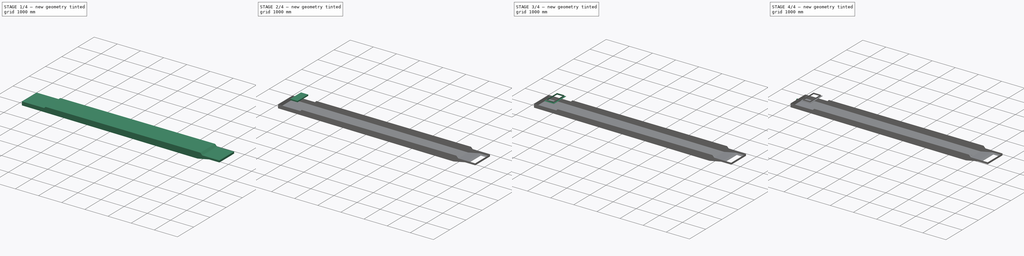
[diagram: build sequence overview — one tinted view per stage of 4, left to right]
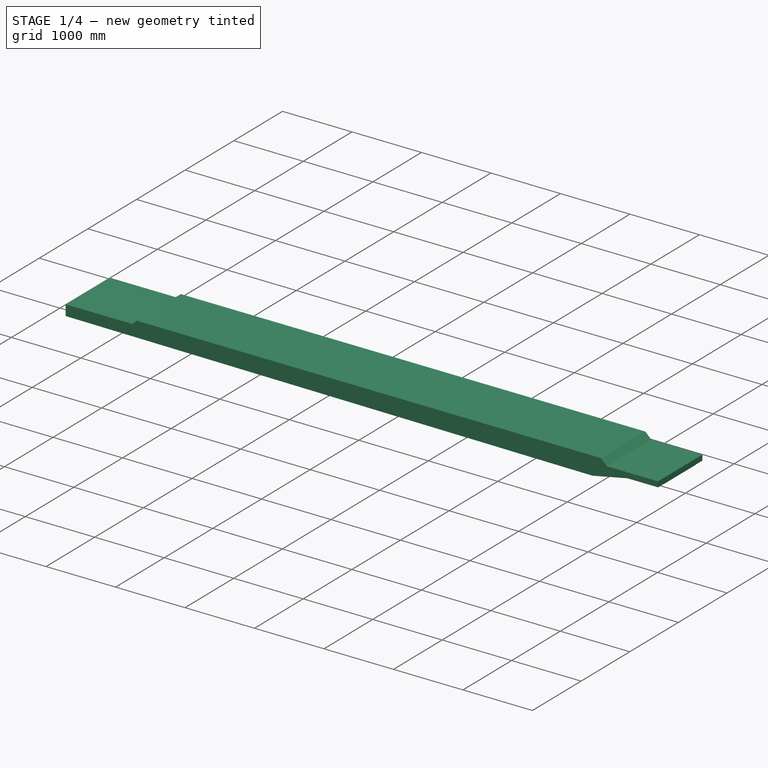
[diagram: stage 1 of 4 — iso view after this stage's code; geometry added in this stage tinted green]
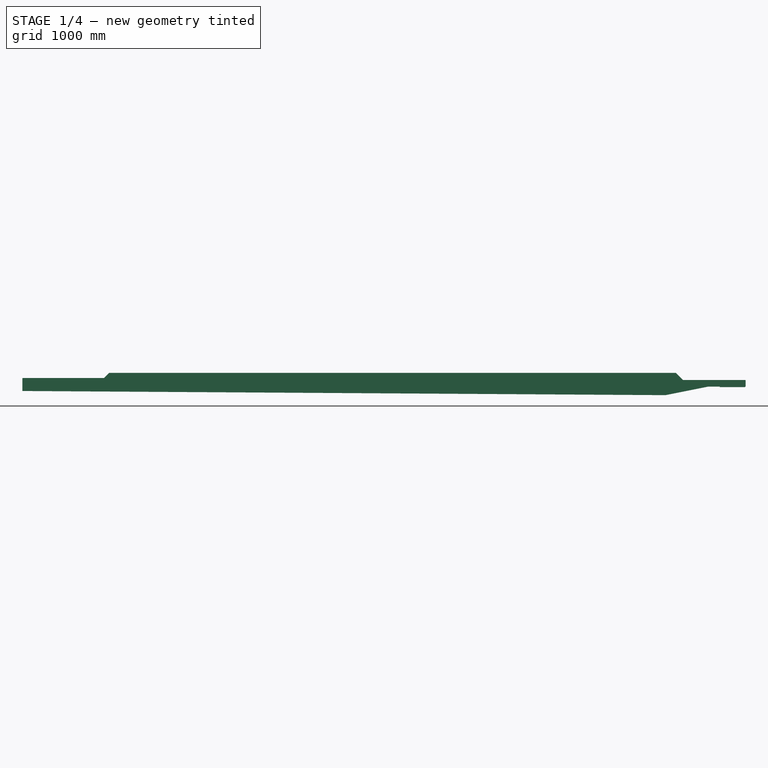
[diagram: stage 1 of 4 — front view after this stage's code; geometry added in this stage tinted green]
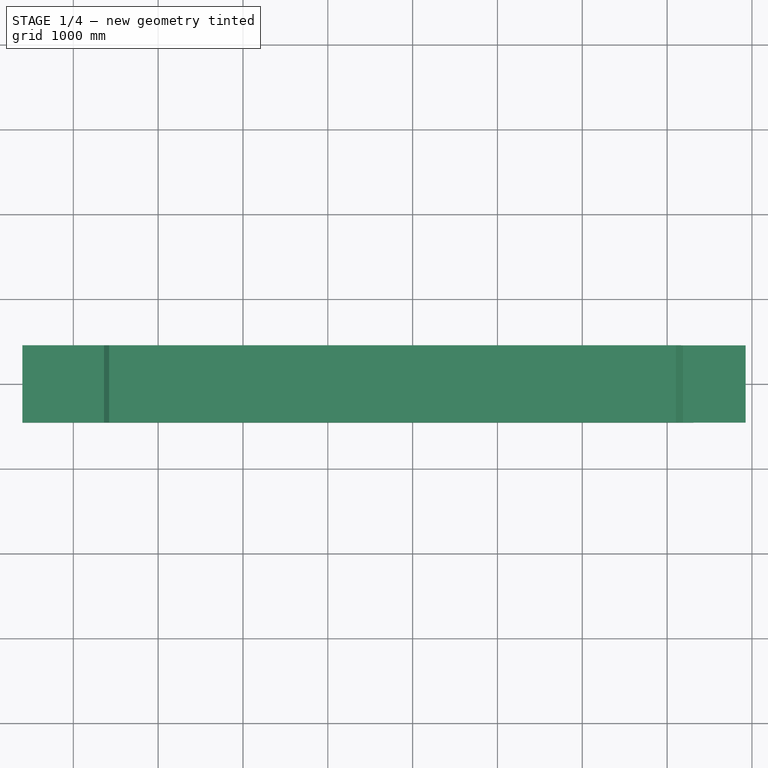
[diagram: stage 1 of 4 — top view after this stage's code; geometry added in this stage tinted green]
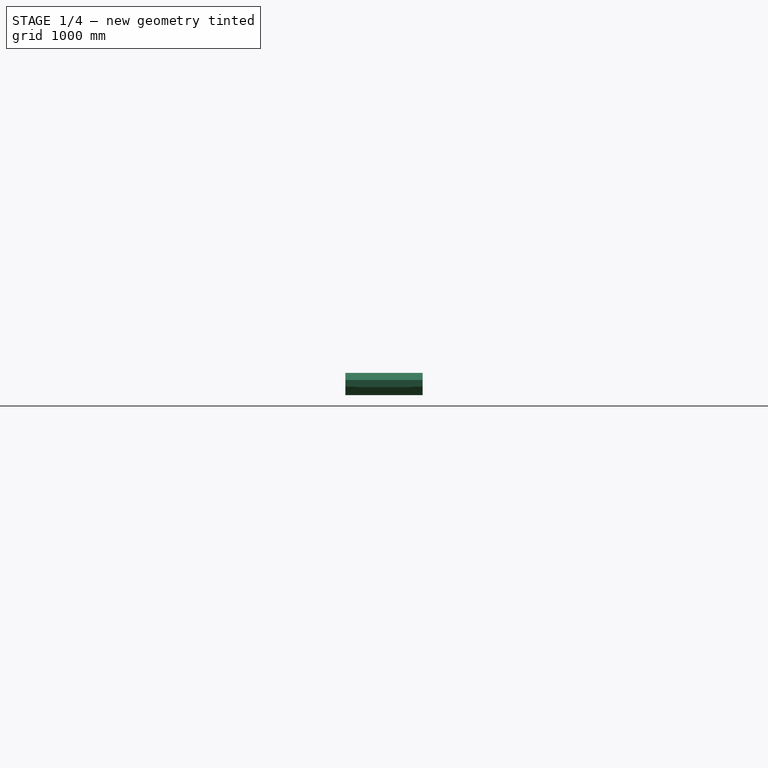
[diagram: stage 1 of 4 — right view after this stage's code; geometry added in this stage tinted green]
FCSTD DOCUMENT  (FreeCAD 1.0R39319 (Git))
Label: Receptacle
License: All rights reserved
objects: Sketcher::SketchObject×8, Part::Extrusion×3, Part::Cut×3, PartDesign::Pad×3, Spreadsheet::Sheet×2, Part::FeaturePython×2, PartDesign::Body×2, App::Part×2, Part::MultiFuse×1
note: 36 computed .brp shape members not serialized (recipe doc carries the construction recipe); baked Part::Feature solids carry a one-line shape summary decoded from their .brp

FEATURE [Spreadsheet::Sheet] Spreadsheet  label="shtRecep"
  cells = C1='tailPulleyHIght Ht; D1='Inclination k(degree); E1='Array_n; F1='BeltWidth B0; G1='h1; H1='h2; I1='post_x; J1='pst_c; A2='CenterDistance C0; B2(C0)=7500; C2(Ht)=1000; D2(k)=0; E2(n0)==C0 / 2500; F2=500; G2(h1)=50; H2(h2)=73; I2(post_x)=1900; J2(post_c)=2; A3='BeltWidth B0; B3(B0)=600; C3=400; D3=450; E3=500; F3=600; G3=700; H3=750; I3=800; J3=900; K3=1000; A4='Belt b1; B4(b1)=180; C4=145; D4=165; E4=180; F4=210; G4=250; H4=265; I4=280; J4=315; K4=345; A5='Belt b2; B5(b2)=160; C5==(C3 - C4) / 2; D5==(D3 - D4) / 2; E5==(E3 - E4) / 2; F5==(F3 - F4) / 2; G5==(G3 - G4) / 2; H5==(H3 - H4) / 2; I5==(I3 - I4) / 2; J5==(J3 - J4) / 2; K5==(K3 - K4) / 2; A6='BeltThickness t0; B6(t0)=10; C6=10; D6=10; E6=10; F6=10; G6=10; H6=10; I6=10; J6=10; K6=10; A7='HeadPullyDia D0; B7(D0)=360; C7=300; D7=300; E7=360; F7=360; G7=360; H7=460; I7=460; J7=520; K7=520; A8='TailPullyDia d1; B8(d1)=300; C8=260; D8=260; E8=300; F8=300; G8=300; H8=390; I8=390; J8=440; K8=440; A9='SnapPullyDia d2; B9(d2)=200; C9=200; D9=200; E9=200; F9=200; G9=200; H9=200; I9=200; J9=200; K9=200; A10='SnapPully Ls; B10(Ls)=500; C10=400; D10=400; E10=400; F10=500; G10=500; H10=500; I10=500; J10=500; K10=500; A11='SnapPully h0; B11(h0)=180; C11=180; D11=180; E11=160; F11=180; G11=180; H11=180; I11=180; J11=180; K11=180; A12='hontaihaba W; B12(W0)=910; C12=710; D12=760; E12=810; F12=910; G12=910; H12=910; I12=910; J12=910; K12=910; A13='hontai _h; B13=103.5; C13=103.5; D13=103.5; E13=103.5; F13=103.5; G13=103.5; H13=103.5; I13=103.5; J13=103.5; K13=103.5; A14='hontai_z; B14=16; C14=16; D14=16; E14=16; F14=16; G14=16; H14=16; I14=16; J14=16; K14=16; A15='takeup_x; B15=-403.47; C15=-403.47; D15=-403.47; E15=-403.47; F15=-403.47; G15=-403.47; H15=-403.47; I15=-403.47; J15=-403.47; K15=-403.47; A16='takeup_y; B16=-362.8; C16=-362.8; D16=-362.8; E16=-362.8; F16=-410; G16=-410; H16=-410; I16=-410; J16=-410; K16=-410; A17='takeup_z; B17=-87; C17=-87; D17=-87; E17=-87; F17=-57; G17=-57; H17=-57; I17=-57; J17=-57; K17=-57; A18='carrierPitch  cp; B18=1000; A19='returnPitch rp; B19=1500; A20='outletL; B20(outletL)=50; A21='outletK; B21(outletK)=0; A22='insertX; B22(insertX)=300; A23='insertK; B23(insertK)=0
FEATURE [Sketcher::SketchObject] Sketch023
  ArcFitTolerance = 0
  FullyConstrained = true
  MakeInternals = false
  Placement = pos=(0,0,0) rot=(1,0,0;1.5708rad)
  expr: Constraints[29] = Spreadsheet.C0 + 425
  sketch-geometry (11):
    g0: LineSegment StartX=-600 StartY=-239 StartZ=0 EndX=362 EndY=-239 EndZ=0
    g1: LineSegment StartX=362 StartY=-239 StartZ=0 EndX=422 EndY=-179 EndZ=0
    g2: LineSegment StartX=422 StartY=-179 StartZ=0 EndX=7107 EndY=-179 EndZ=0
    g3: LineSegment StartX=7107 StartY=-179 StartZ=0 EndX=7190 EndY=-262 EndZ=0
    g4: LineSegment StartX=7190 StartY=-262 StartZ=0 EndX=7925 EndY=-262 EndZ=0
    g5: LineSegment StartX=7485 StartY=-337 StartZ=0 EndX=6985 EndY=-437 EndZ=0
    g6: LineSegment StartX=6985 StartY=-437 StartZ=0 EndX=6835 EndY=-437 EndZ=0
    g7: LineSegment StartX=6835 StartY=-437 StartZ=0 EndX=-600 EndY=-389 EndZ=0
    g8: LineSegment StartX=-600 StartY=-389 StartZ=0 EndX=-600 EndY=-239 EndZ=0
    g9: LineSegment StartX=7485 StartY=-337 StartZ=0 EndX=7925 EndY=-337 EndZ=0
    g10: LineSegment StartX=7925 StartY=-337 StartZ=0 EndX=7925 EndY=-262 EndZ=0
  constraints (33):
    c: Horizontal(g0)
    c: Coincident(g0,g1)
    c: Coincident(g1,g2)
    c: Horizontal(g2)
    c: Coincident(g2,g3)
    c: Coincident(g3,g4)
    c: Horizontal(g4)
    c: Coincident(g5,g6)
    c: Horizontal(g6)
    c: Coincident(g6,g7)
    c: Coincident(g7,g8)
    c: Coincident(g8,g0)
    c: Vertical(g8)
    c: DistanceY(g8,g8) = 150
    c: DistanceY(g0,g-1) = 239
    c: Angle(g1,g0) = 2.35619
    c: DistanceY(g-1,g2) = -179
    c: Angle(g4,g3) = 2.35619
    c: DistanceY(g-1,g3) = -262
    c: DistanceY(g5,g3) = 75
    c: DistanceX(g6,g6) = 150
    c: DistanceX(g5,g5) = 500
    c: DistanceY(g5,g5) = 100
    c: Horizontal(g9)
    c: Coincident(g10,g9)
    c: Coincident(g10,g4)
    c: Vertical(g10)
    c: Coincident(g9,g5)
    c: DistanceX(g5,g9) = 440
    c: DistanceX(g-2,g9) = 7925
    c: DistanceX(g4,g4) = 735
    c: DistanceX(g-2,g7) = -600
    c: DistanceX(g-2,g0) = 362
FEATURE [Part::Extrusion] Extrude015
  Base = -> Sketch023
  Dir = (0,-1,2e-16)
  DirMode = 2
  FaceMakerClass = Part::FaceMakerBullseye
  FaceMakerMode = 3
  LengthFwd = 910
  LengthRev = 0
  Solid = true
  Symmetric = true
  expr: LengthFwd = <<shtRecep>>.W0
FEATURE [Sketcher::SketchObject] Sketch032
  ArcFitTolerance = 0
  FullyConstrained = true
  MakeInternals = false
  MapMode = 5
  Placement = pos=(371.335,-4.166e-13,-1856.67) rot=(0,-1,0;0.197396rad)
  sketch-geometry (4):
    g0: LineSegment StartX=7890.01 StartY=-275 StartZ=0 EndX=8190.01 EndY=-275 EndZ=0
    g1: LineSegment StartX=8190.01 StartY=-275 StartZ=0 EndX=8190.01 EndY=275 EndZ=0
    g2: LineSegment StartX=8190.01 StartY=275 StartZ=0 EndX=7890.01 EndY=275 EndZ=0
    g3: LineSegment StartX=7890.01 StartY=275 StartZ=0 EndX=7890.01 EndY=-275 EndZ=0
  constraints (12):
    c: Coincident(g0,g1)
    c: Coincident(g1,g2)
    c: Coincident(g2,g3)
    c: Coincident(g3,g0)
    c: Horizontal(g0)
    c: Horizontal(g2)
    c: Vertical(g1)
    c: Vertical(g3)
    c: DistanceX(g1,g-3) = 20
    c: DistanceY(g1,g-3) = 130
    c: DistanceY(g-3,g0) = 130
    c: DistanceX(g0,g0) = 300
FEATURE [Sketcher::SketchObject] Sketch033
  ArcFitTolerance = 0
  FullyConstrained = true
  MakeInternals = false
  Placement = pos=(0,0,0) rot=(1,0,0;1.5708rad)
  expr: Constraints[29] = Spreadsheet.C0 + 422
  sketch-geometry (11):
    g0: LineSegment StartX=-597 StartY=-239 StartZ=0 EndX=362 EndY=-239 EndZ=0
    g1: LineSegment StartX=362 StartY=-239 StartZ=0 EndX=422 EndY=-179 EndZ=0
    g2: LineSegment StartX=422 StartY=-179 StartZ=0 EndX=7104 EndY=-179 EndZ=0
    g3: LineSegment StartX=7104 StartY=-179 StartZ=0 EndX=7187 EndY=-262 EndZ=0
    g4: LineSegment StartX=7187 StartY=-262 StartZ=0 EndX=7922 EndY=-262 EndZ=0
    g5: LineSegment StartX=7482 StartY=-337 StartZ=0 EndX=6982 EndY=-437 EndZ=0
    g6: LineSegment StartX=6982 StartY=-437 StartZ=0 EndX=6832 EndY=-437 EndZ=0
    g7: LineSegment StartX=6832 StartY=-437 StartZ=0 EndX=-597 EndY=-389 EndZ=0
    g8: LineSegment StartX=-597 StartY=-389 StartZ=0 EndX=-597 EndY=-239 EndZ=0
    g9: LineSegment StartX=7482 StartY=-337 StartZ=0 EndX=7922 EndY=-337 EndZ=0
    g10: LineSegment StartX=7922 StartY=-337 StartZ=0 EndX=7922 EndY=-262 EndZ=0
  constraints (33):
    c: Horizontal(g0)
    c: Coincident(g0,g1)
    c: Coincident(g1,g2)
    c: Horizontal(g2)
    c: Coincident(g2,g3)
    c: Coincident(g3,g4)
    c: Horizontal(g4)
    c: Coincident(g5,g6)
    c: Horizontal(g6)
    c: Coincident(g6,g7)
    c: Coincident(g7,g8)
    c: Coincident(g8,g0)
    c: Vertical(g8)
    c: DistanceY(g8,g8) = 150
    c: DistanceY(g0,g-1) = 239
    c: Angle(g1,g0) = 2.35619
    c: DistanceY(g-1,g2) = -179
    c: Angle(g4,g3) = 2.35619
    c: DistanceY(g-1,g3) = -262
    c: DistanceY(g5,g3) = 75
    c: DistanceX(g6,g6) = 150
    c: DistanceX(g5,g5) = 500
    c: DistanceY(g5,g5) = 100
    c: Horizontal(g9)
    c: Coincident(g10,g9)
    c: Coincident(g10,g4)
    c: Vertical(g10)
    c: Coincident(g9,g5)
    c: DistanceX(g5,g9) = 440
    c: DistanceX(g-2,g9) = 7922
    c: DistanceX(g4,g4) = 735
    c: DistanceX(g-2,g7) = -597
    c: DistanceX(g-2,g0) = 362
FEATURE [Part::Extrusion] Extrude032
  Base = -> Sketch033
  Dir = (0,-1,2e-16)
  DirMode = 2
  FaceMakerClass = Part::FaceMakerBullseye
  FaceMakerMode = 3
  LengthFwd = 904
  LengthRev = 0
  Placement = pos=(0,0,3) rot=(0,0,1;0rad)
  Solid = true
  Symmetric = true
  expr: LengthFwd = <<shtRecep>>.W0 - 6
FEATURE [Spreadsheet::Sheet] Spreadsheet006  label="shtOutlet"
  cells = A1='outlet; A2='w0; B2(w0)=300; A3='l0; B3(l0)==<<shtRecep>>.B0 + 50; A4='t0; B4(t0)=6; A5='h0; B5(h0)=50; A6='b0; B6(b0)=50; A7='sita0; B7(sita0)=0
FEATURE [App::Part] Part001  label="outlet"
  Group = -> [Spreadsheet006,Body002,Body003,Cut001]
  Origin = -> Origin005
  Placement = pos=(7768,0,-338) rot=(0,0,1;0rad)
  expr: .Placement.Base.x = Spreadsheet.C0 + 268
FEATURE [Sketcher::SketchObject] Sketch
  ArcFitTolerance = 1e-06
  AttachmentSupport = -> [Cut]
  FullyConstrained = true
  MakeInternals = false
  MapMode = 5
  Placement = pos=(0,-7.42e-14,-334) rot=(0,0,1;0rad)
  expr: Constraints[10] = <<shtRecep>>.C0 + 420
  expr: Constraints[9] = <<shtRecep>>.B0 + 50
  sketch-geometry (4):
    g0: LineSegment StartX=7620 StartY=-325 StartZ=0 EndX=7920 EndY=-325 EndZ=0
    g1: LineSegment StartX=7920 StartY=-325 StartZ=0 EndX=7920 EndY=325 EndZ=0
    g2: LineSegment StartX=7920 StartY=325 StartZ=0 EndX=7620 EndY=325 EndZ=0
    g3: LineSegment StartX=7620 StartY=325 StartZ=0 EndX=7620 EndY=-325 EndZ=0
  constraints (11):
    c: Coincident(g0,g1)
    c: Coincident(g1,g2)
    c: Coincident(g2,g3)
    c: Coincident(g3,g0)
    c: Horizontal(g0)
    c: Horizontal(g2)
    c: Vertical(g1)
    c: DistanceX(g2,g2) = 300
    c: Symmetric(g0,g2,g-1)
    c: DistanceY(g3,g3) = 650
    c: DistanceX(g-1,g1) = 7920
FEATURE [Part::Extrusion] Extrude
  Base = -> Sketch
  Dir = (0,0,1)
  DirMode = 2
  FaceMakerClass = Part::FaceMakerBullseye
  FaceMakerMode = 3
  LengthFwd = 10
  LengthRev = 0
  Reversed = true
  Solid = true
  Symmetric = false
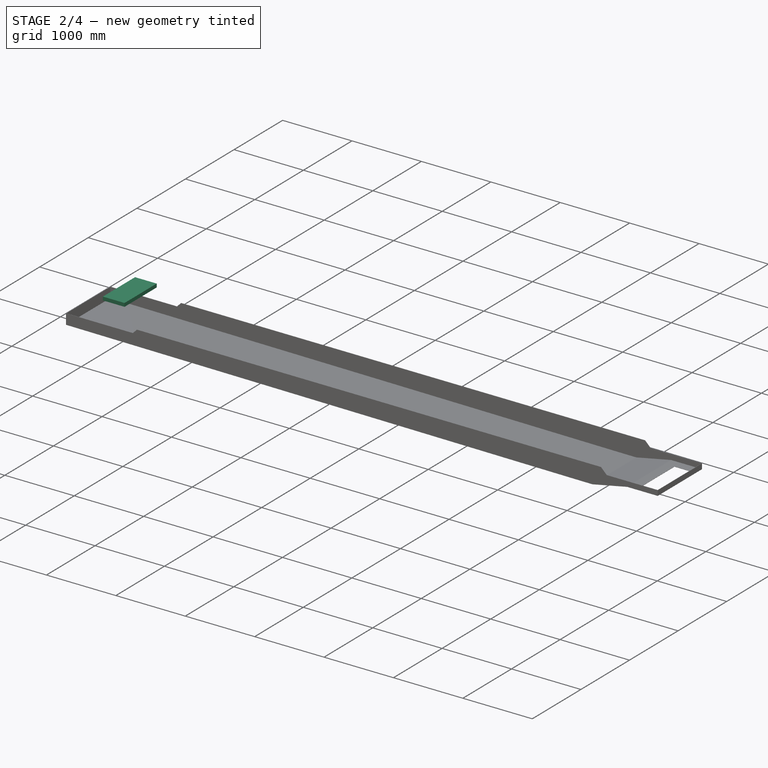
[diagram: stage 2 of 4 — iso view after this stage's code; geometry added in this stage tinted green]
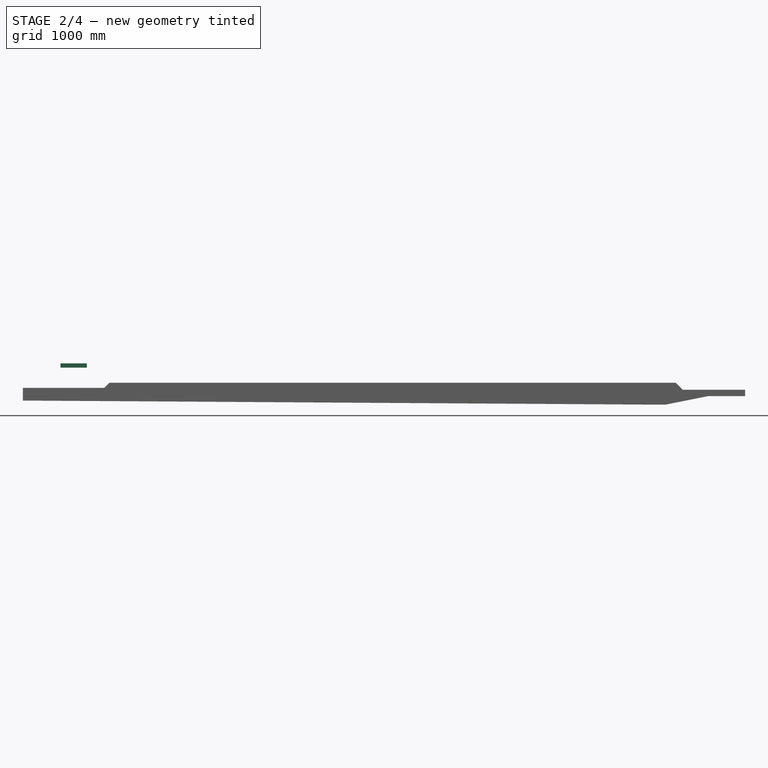
[diagram: stage 2 of 4 — front view after this stage's code; geometry added in this stage tinted green]
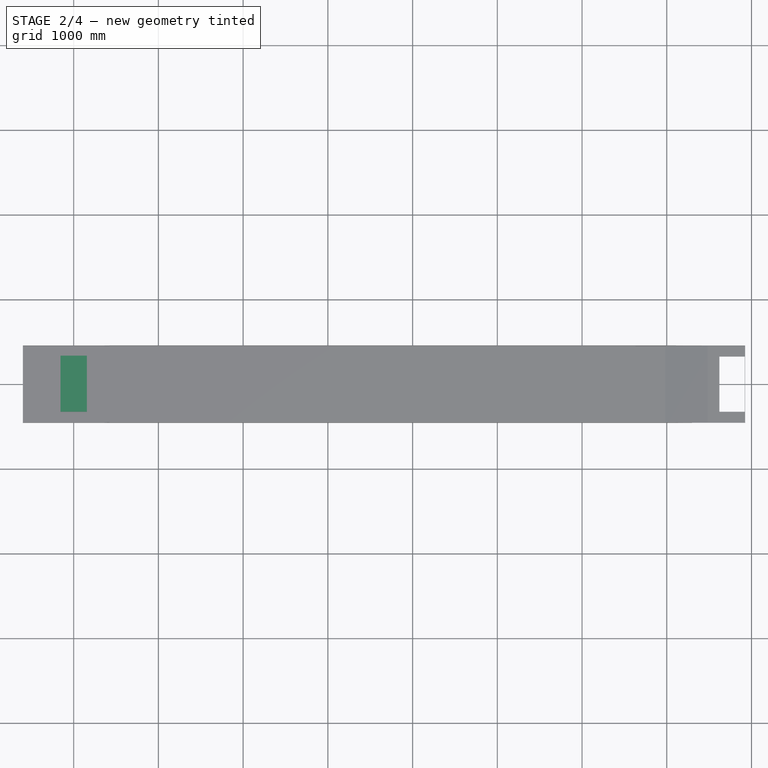
[diagram: stage 2 of 4 — top view after this stage's code; geometry added in this stage tinted green]
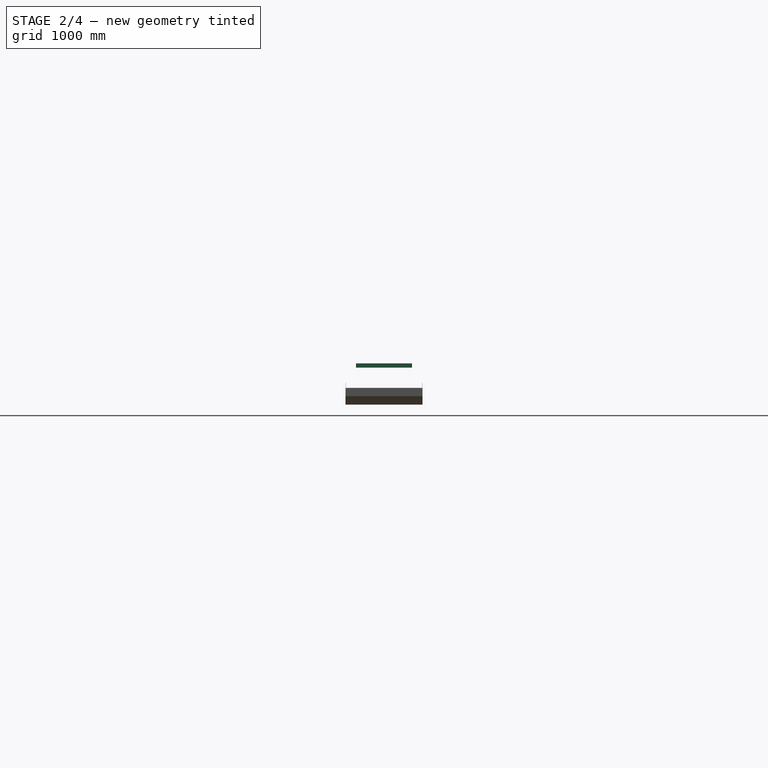
[diagram: stage 2 of 4 — right view after this stage's code; geometry added in this stage tinted green]
FEATURE [Part::Cut] Cut
  Base = -> Extrude015
  Refine = true
  Tool = -> Extrude032
FEATURE [PartDesign::Body] Body002
  AllowCompound = false
  Group = -> [Sketch054,Pad003]
  Origin = -> Origin041
  Tip = -> Pad003
FEATURE [Sketcher::SketchObject] Sketch004
  ArcFitTolerance = 1e-06
  AttachmentSupport = -> [XZ_Plane004]
  FullyConstrained = true
  MakeInternals = false
  MapMode = 5
  Placement = pos=(0,0,0) rot=(1,0,0;1.5708rad)
  expr: .Constraints.sita = Spreadsheet006.sita0
  expr: Constraints[11] = Spreadsheet006.h0
  expr: Constraints[8] = Spreadsheet006.w0 + Spreadsheet006.t0 * 2
  sketch-geometry (5):
    g0: LineSegment StartX=-156 StartY=0 StartZ=0 EndX=156 EndY=0 EndZ=0
    g1: LineSegment StartX=156 StartY=0 StartZ=0 EndX=156 EndY=50 EndZ=0
    g2: LineSegment StartX=156 StartY=50 StartZ=0 EndX=-156 EndY=50 EndZ=0
    g3: LineSegment StartX=-156 StartY=50 StartZ=0 EndX=-156 EndY=0 EndZ=0
    g4: GeomPoint X=-6.4e-15 Y=50 Z=0
  constraints (12):
    c: PointOnObject(g0,g-1)
    c: Coincident(g0,g1)
    c: Vertical(g1)
    c: Coincident(g1,g2)
    c: Coincident(g2,g3)
    c: Coincident(g3,g0)
    c: Vertical(g3)
    c: Symmetric(g0,g0,g-2)
    c: DistanceX(g0,g0) = 312
    c: Angle(g0,g2) = 0  'sita'
    c: Symmetric(g2,g2,g4)
    c: DistanceY(g-1,g4) = 50
FEATURE [PartDesign::Pad] Pad004
  Direction = (0,-1,2e-16)
  Length = 662
  Length2 = 10
  Midplane = true
  Placement = pos=(0,0,0) rot=(1,0,0;1.5708rad)
  Profile = -> Sketch004
  ReferenceAxis = -> Sketch004 [N_Axis]
  Refine = true
  Suppressed = false
  Type = 0
  expr: Length = Spreadsheet006.l0 + Spreadsheet006.t0 * 2
FEATURE [Part::Cut] Cut002
  Base = -> Cut
  Refine = true
  Tool = -> Extrude
FEATURE [App::Part] Part014  label="waterReceptacle"
  Group = -> [Single_flange_straight_pipe,Fusion009,Single_flange_straight_pipe001,Sketch024,Sketch032,Part001,Spreadsheet,Extrude015,Extrude032,Cut,Sketch023,Sketch033,Sketch,Extrude,Cut002]
  Origin = -> Origin018
  mass = 251.327
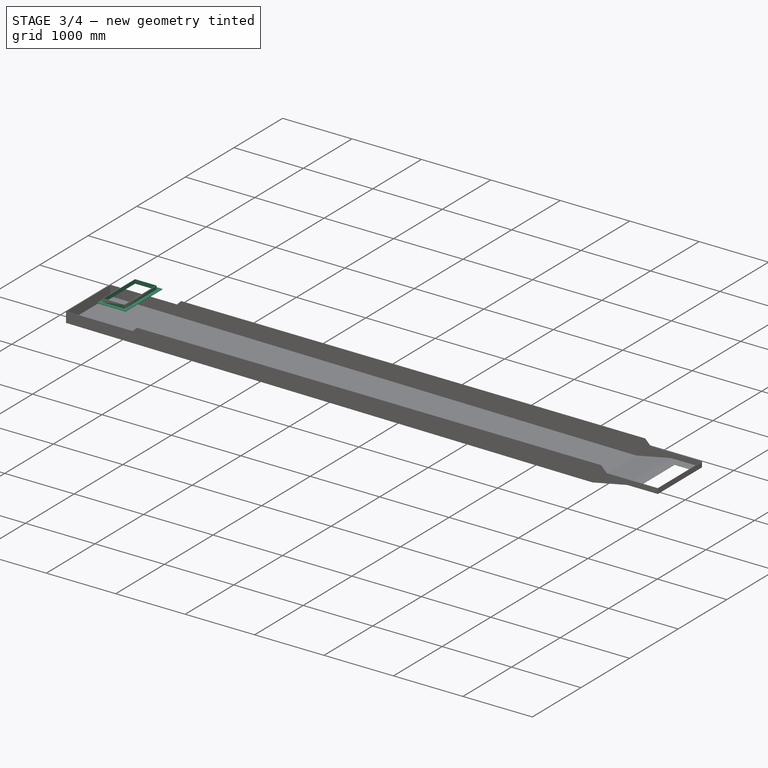
[diagram: stage 3 of 4 — iso view after this stage's code; geometry added in this stage tinted green]
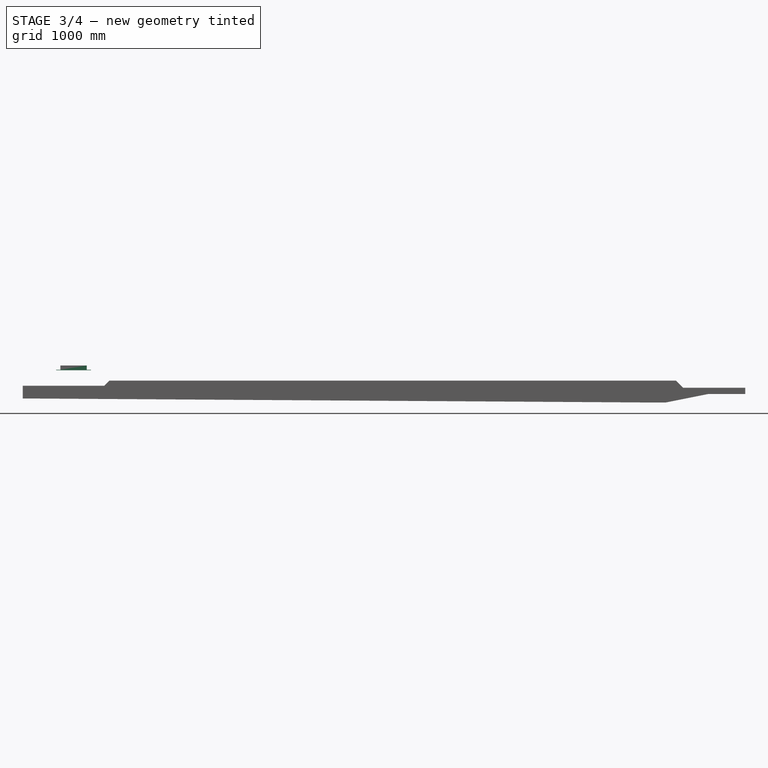
[diagram: stage 3 of 4 — front view after this stage's code; geometry added in this stage tinted green]
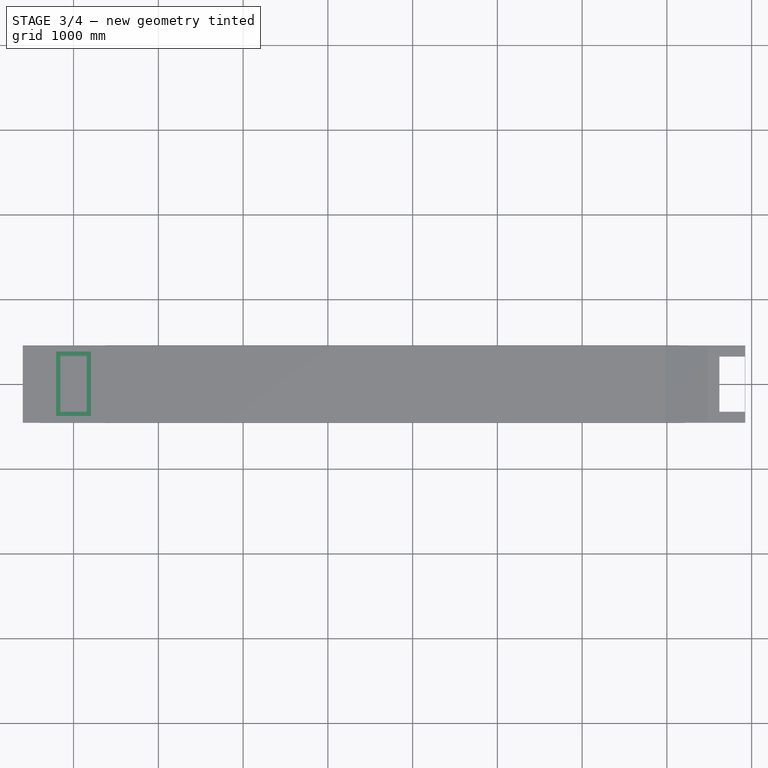
[diagram: stage 3 of 4 — top view after this stage's code; geometry added in this stage tinted green]
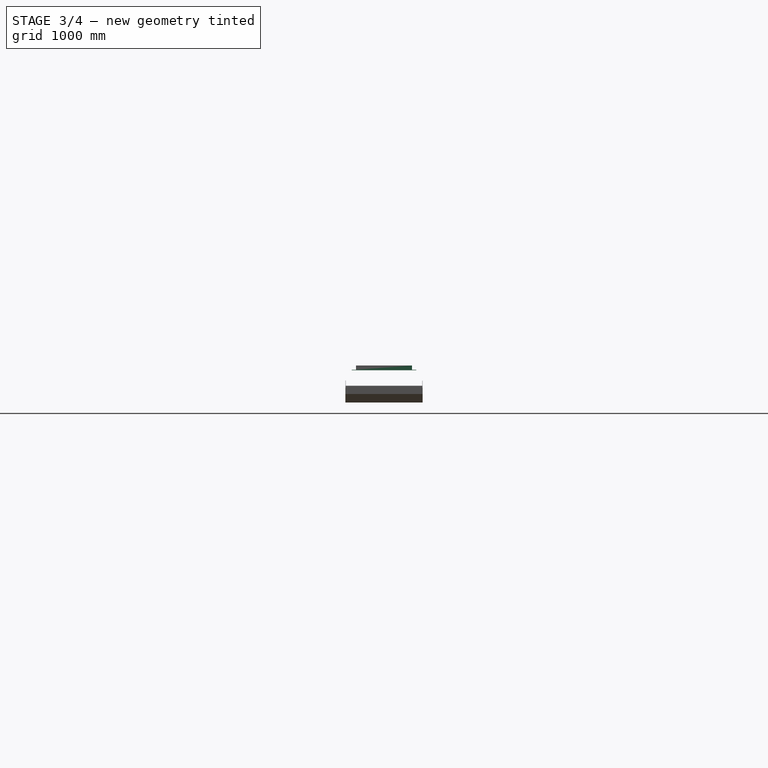
[diagram: stage 3 of 4 — right view after this stage's code; geometry added in this stage tinted green]
FEATURE [Sketcher::SketchObject] Sketch054
  ArcFitTolerance = 1e-06
  AttachmentSupport = -> [XZ_Plane041]
  FullyConstrained = true
  MakeInternals = false
  MapMode = 5
  Placement = pos=(0,0,0) rot=(1,0,0;1.5708rad)
  expr: Constraints[11] = Spreadsheet006.h0 + 10
  expr: Constraints[8] = Spreadsheet006.w0
  expr: Constraints[9] = Spreadsheet006.sita0
  sketch-geometry (5):
    g0: LineSegment StartX=-150 StartY=0 StartZ=0 EndX=150 EndY=0 EndZ=0
    g1: LineSegment StartX=150 StartY=0 StartZ=0 EndX=150 EndY=60 EndZ=0
    g2: LineSegment StartX=150 StartY=60 StartZ=0 EndX=-150 EndY=60 EndZ=0
    g3: LineSegment StartX=-150 StartY=60 StartZ=0 EndX=-150 EndY=0 EndZ=0
    g4: GeomPoint X=-2.72e-14 Y=60 Z=0
  constraints (12):
    c: PointOnObject(g0,g-1)
    c: Coincident(g0,g1)
    c: Vertical(g1)
    c: Coincident(g1,g2)
    c: Coincident(g2,g3)
    c: Coincident(g3,g0)
    c: Vertical(g3)
    c: Symmetric(g0,g0,g-2)
    c: DistanceX(g0,g0) = 300
    c: Angle(g0,g2) = 0
    c: Symmetric(g2,g2,g4)
    c: DistanceY(g-1,g4) = 60
FEATURE [PartDesign::Pad] Pad003
  Direction = (0,-1,2e-16)
  Length = 650
  Length2 = 10
  Midplane = true
  Placement = pos=(0,0,0) rot=(1,0,0;1.5708rad)
  Profile = -> Sketch054
  ReferenceAxis = -> Sketch054 [N_Axis]
  Refine = true
  Suppressed = false
  Type = 0
  expr: Length = Spreadsheet006.l0
FEATURE [Sketcher::SketchObject] Sketch055
  ArcFitTolerance = 1e-06
  AttachmentSupport = -> [Pad004]
  FullyConstrained = true
  MakeInternals = false
  MapMode = 5
  Placement = pos=(0,1.11e-14,50) rot=(0,0,1;3.14159rad)
  expr: .AttachmentOffset.Base.x = -<<shtOutlet>>.h0 * sin(<<shtOutlet>>.sita0) * cos(<<shtOutlet>>.sita0)
  expr: Constraints[10] = (Spreadsheet006.w0 + Spreadsheet006.t0 * 2 + Spreadsheet006.b0 * 2) / cos(Spreadsheet006.sita0)
  expr: Constraints[11] = Spreadsheet006.l0 + Spreadsheet006.t0 * 2 + Spreadsheet006.b0 * 2
  sketch-geometry (5):
    g0: LineSegment StartX=-206 StartY=-381 StartZ=0 EndX=206 EndY=-381 EndZ=0
    g1: LineSegment StartX=206 StartY=-381 StartZ=0 EndX=206 EndY=381 EndZ=0
    g2: LineSegment StartX=206 StartY=381 StartZ=0 EndX=-206 EndY=381 EndZ=0
    g3: LineSegment StartX=-206 StartY=381 StartZ=0 EndX=-206 EndY=-381 EndZ=0
    g4: GeomPoint [constr] X=0 Y=0 Z=0
  constraints (12):
    c: Coincident(g0,g1)
    c: Coincident(g1,g2)
    c: Coincident(g2,g3)
    c: Coincident(g3,g0)
    c: Horizontal(g0)
    c: Horizontal(g2)
    c: Vertical(g1)
    c: Vertical(g3)
    c: Symmetric(g2,g0,g4)
    c: Coincident(g4,g-1)
    c: DistanceX(g2,g2) = 412
    c: DistanceY(g3,g3) = 762
FEATURE [PartDesign::Pad] Pad005
  BaseFeature = -> Pad004
  Direction = (0,0,1)
  Length = 6
  Length2 = 10
  Placement = pos=(0,0,0) rot=(1,0,0;1.5708rad)
  Profile = -> Sketch055
  ReferenceAxis = -> Sketch055 [N_Axis]
  Refine = true
  Suppressed = false
  Type = 0
FEATURE [PartDesign::Body] Body003
  AllowCompound = false
  Group = -> [Sketch004,Pad004,Sketch055,Pad005]
  Origin = -> Origin004
  Tip = -> Pad005
FEATURE [Part::Cut] Cut001
  Base = -> Body003
  Placement = pos=(0,0,0) rot=(0,1,0;3.14159rad)
  Refine = true
  Tool = -> Body002
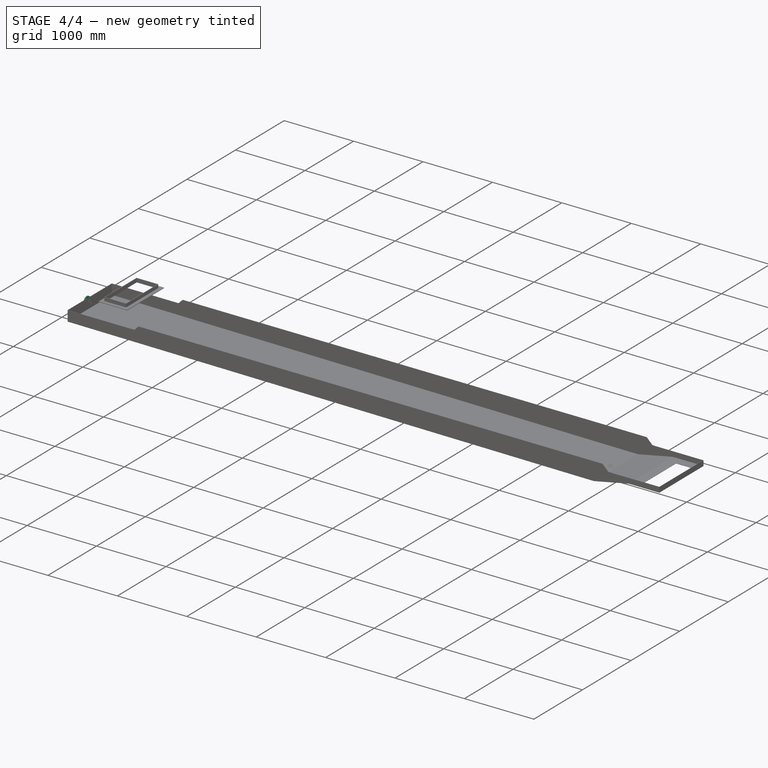
[diagram: stage 4 of 4 — iso view after this stage's code; geometry added in this stage tinted green]
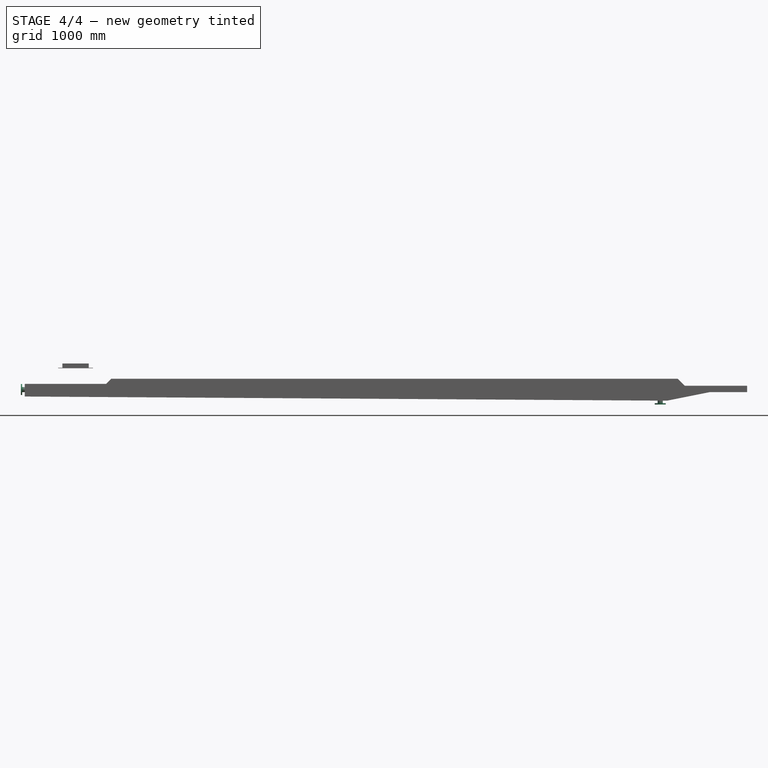
[diagram: stage 4 of 4 — front view after this stage's code; geometry added in this stage tinted green]
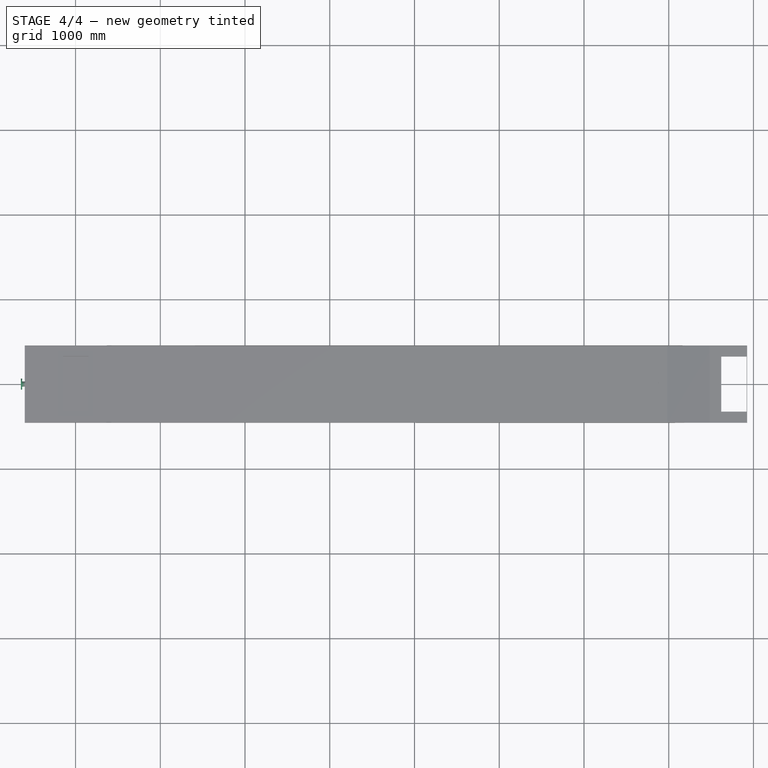
[diagram: stage 4 of 4 — top view after this stage's code; geometry added in this stage tinted green]
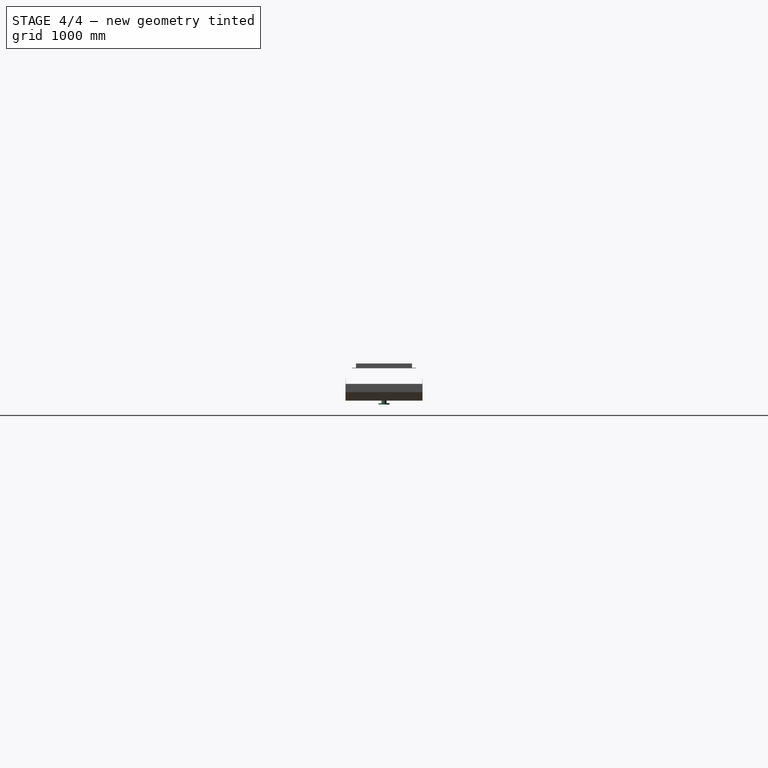
[diagram: stage 4 of 4 — right view after this stage's code; geometry added in this stage tinted green]
FEATURE [Part::FeaturePython] Single_flange_straight_pipe  # WARN: FeaturePython — macro-defined, semantics opaque (R4)
  L = 50
  Placement = pos=(6900,0,-482.41) rot=(0,-1,0;1.5708rad)
  dia = 6
  fittings = 06_Single_flange_straight_pipe
  material = 0
  standard = 0
  standard2 = 0
  expr: .Placement.Base.x = Spreadsheet.C0 - 600
FEATURE [Sketcher::SketchObject] Sketch024
  ArcFitTolerance = 0
  FullyConstrained = false
  MakeInternals = false
  MapMode = 5
  Placement = pos=(0,-1.041e-13,-469) rot=(0,0,1;0rad)
  expr: Constraints[1] = Spreadsheet.C0 - 750
  sketch-geometry (1):
    g0: Circle CenterX=6750 CenterY=0 CenterZ=0 NormalX=0 NormalY=0 NormalZ=1 AngleXU=0 Radius=30.4407
  constraints (2):
    c: PointOnObject(g0,g-1)
    c: DistanceX(g-1,g0) = 6750
FEATURE [Part::MultiFuse] Fusion009
  Shapes = -> [Single_flange_straight_pipe]
FEATURE [Part::FeaturePython] Single_flange_straight_pipe001  # WARN: FeaturePython — macro-defined, semantics opaque (R4)
  L = 50
  Placement = pos=(-645,0,-306.37) rot=(0,0,1;0rad)
  dia = 6
  fittings = 06_Single_flange_straight_pipe
  material = 0
  standard = 0
  standard2 = 0
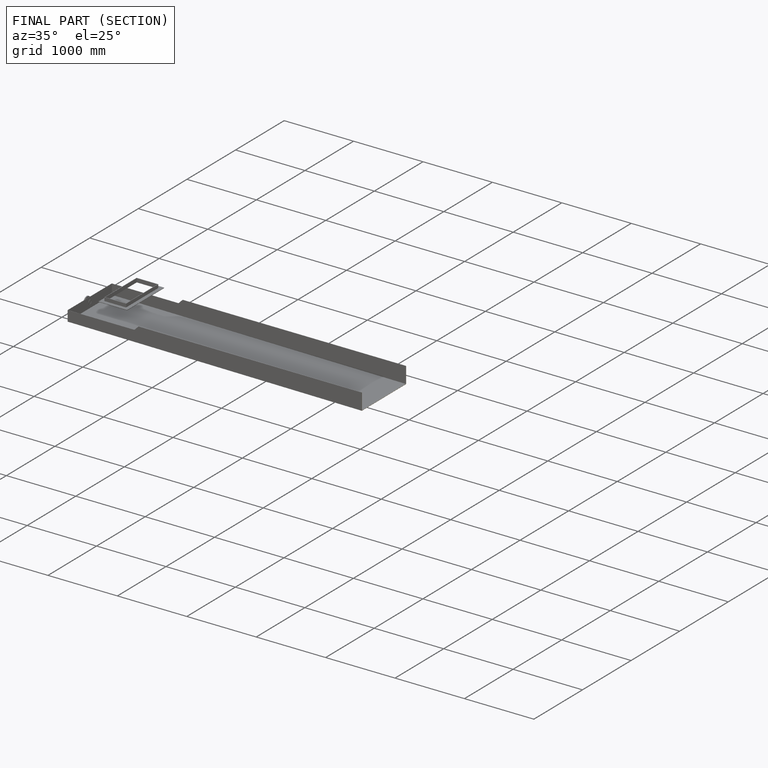
[diagram: finished part — half-section view (interior)]
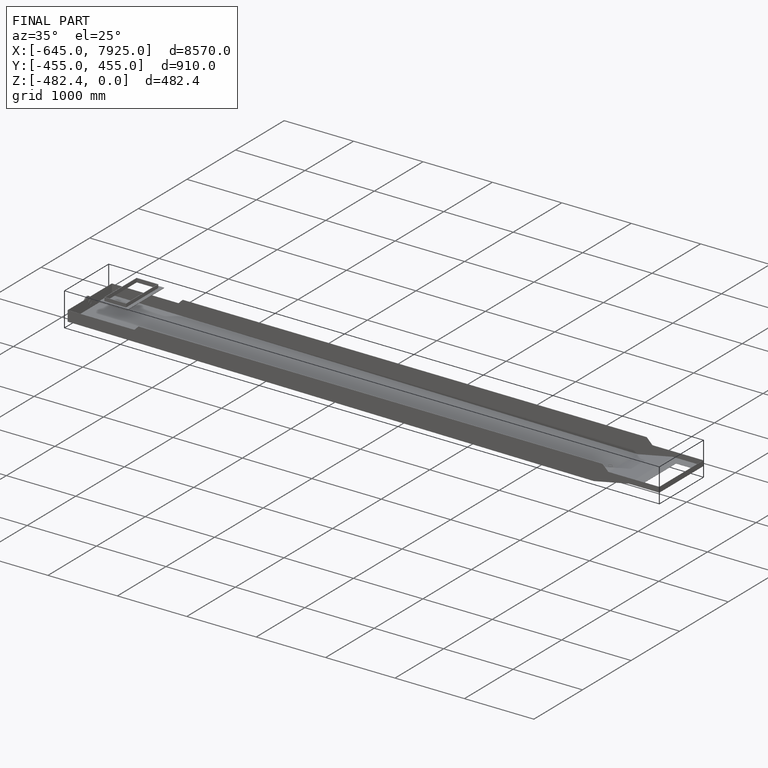
[diagram: finished part — iso view with bounding-box wireframe]
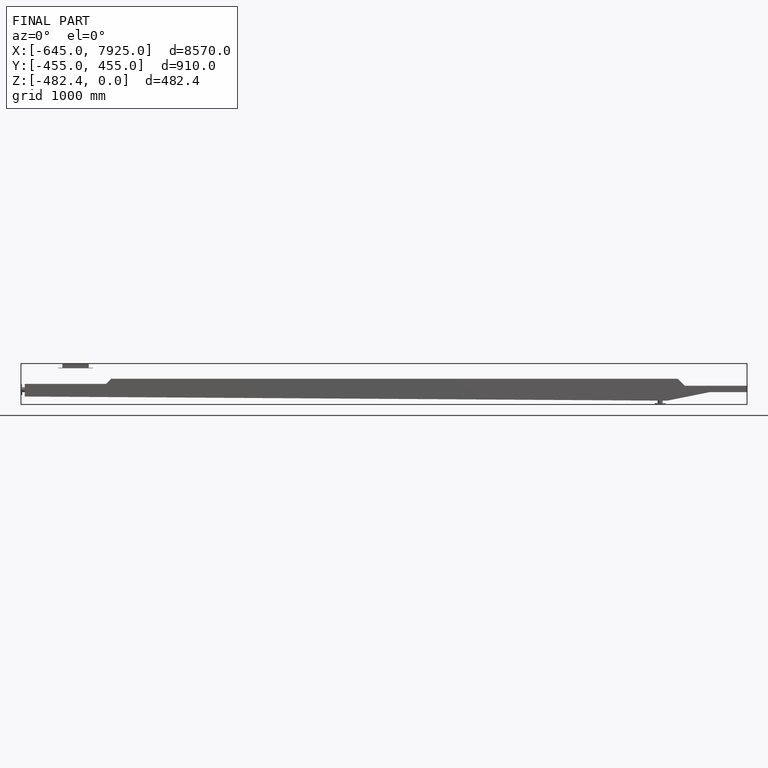
[diagram: finished part — front view with bounding-box wireframe]
